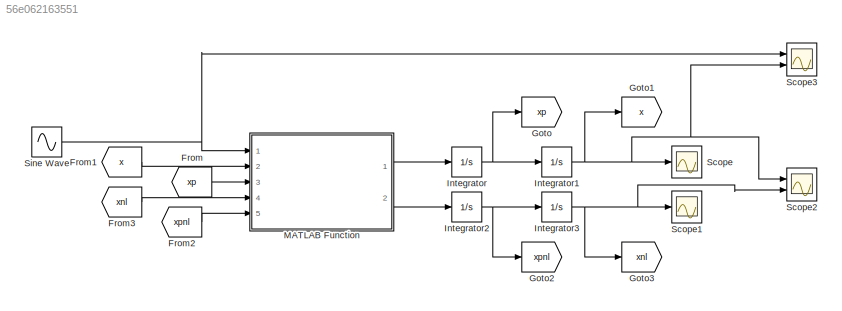
MODEL slx_56e062163551
KIND model
CONFIG AbsTol = auto
CONFIG EnableMultiTasking = off
CONFIG FixedStep = auto
CONFIG MaxStep = 1e-2
CONFIG MinStep = auto
CONFIG RelTol = 1e-3
CONFIG SampleTimeConstraint = Unconstrained
CONFIG SolverName = VariableStepAuto
CONFIG StartTime = 0.0
CONFIG StopTime = 1000
BLOCK [From] From
  GotoTag = xp
BLOCK [From] From1
  GotoTag = x
BLOCK [From] From2
  GotoTag = xpnl
BLOCK [From] From3
  GotoTag = xnl
BLOCK [Goto] Goto
  GotoTag = xp
BLOCK [Goto] Goto1
  GotoTag = x
BLOCK [Goto] Goto2
  GotoTag = xpnl
BLOCK [Goto] Goto3
  GotoTag = xnl
BLOCK [Integrator] Integrator
  Ports = [1, 1]
BLOCK [Integrator] Integrator1
  Ports = [1, 1]
BLOCK [Integrator] Integrator2
  Ports = [1, 1]
BLOCK [Integrator] Integrator3
  Ports = [1, 1]
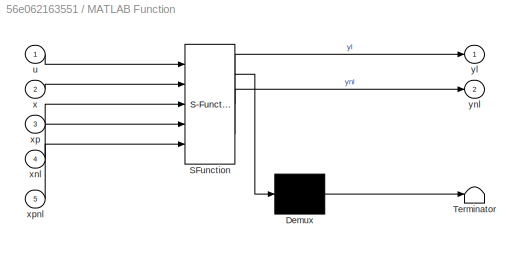
BLOCK [SubSystem] MATLAB Function
  ErrorFcn = Stateflow.Translate.translate
  PermitHierarchicalResolution = ExplicitOnly
  Ports = [5, 2]
  RequestExecContextInheritance = off
  SFBlockType = MATLAB Function
  TreatAsAtomicUnit = on
BLOCK [Demux] MATLAB Function/ Demux 
  Outputs = 1
  Ports = [1, 1]
BLOCK [S-Function] MATLAB Function/ SFunction 
  EnableBusSupport = on
  FunctionName = sf_sfun
  PortCounts = [5 3]
  Ports = [5, 3]
  SFcnIsStateOwnerBlock = off
  SFunctionDeploymentMode = off
  Tag = Stateflow S-Function 2
BLOCK [Terminator] MATLAB Function/ Terminator 
BLOCK [Inport] MATLAB Function/u
BLOCK [Inport] MATLAB Function/x
  Port = 2
BLOCK [Inport] MATLAB Function/xnl
  Port = 4
BLOCK [Inport] MATLAB Function/xp
  Port = 3
BLOCK [Inport] MATLAB Function/xpnl
  Port = 5
BLOCK [Outport] MATLAB Function/yl
  VectorParamsAs1DForOutWhenUnconnected = off
BLOCK [Outport] MATLAB Function/ynl
  Port = 2
  VectorParamsAs1DForOutWhenUnconnected = off
BLOCK [Scope] Scope
  Floating = off
  NumInputPorts = 1
  Ports = [1]
  ScopeSpecificationString = Simulink.scopes.TimeScopeBlockCfg('CurrentConfiguration', extmgr.ConfigurationSet(extmgr.Configuration('Core','General UI',true),extmgr.Configuration('Core','Source UI',true),extmgr.Configuration('Sources','WiredSimulink',true),extmgr.Configuration('Visuals','Time Domain',true,'SerializedDisplays',{struct('MinYLimReal','-1.02361','MaxYLimReal','1.04599','YLabelReal','','MinYLimMag','0.00000','MaxY...<+1408ch>
BLOCK [Scope] Scope1
  Floating = off
  NumInputPorts = 1
  Ports = [1]
  ScopeSpecificationString = Simulink.scopes.TimeScopeBlockCfg('CurrentConfiguration', extmgr.ConfigurationSet(extmgr.Configuration('Core','General UI',true),extmgr.Configuration('Core','Source UI',true),extmgr.Configuration('Sources','WiredSimulink',true,'DataLoggingVariableName','ScopeData1'),extmgr.Configuration('Visuals','Time Domain',true,'SerializedDisplays',{struct('MinYLimReal','-0.14624','MaxYLimReal','0.14607','YLab...<+1445ch>
BLOCK [Scope] Scope2
  Floating = off
  NumInputPorts = 2
  Ports = [2]
  ScopeSpecificationString = Simulink.scopes.TimeScopeBlockCfg('CurrentConfiguration', extmgr.ConfigurationSet(extmgr.Configuration('Core','General UI',true),extmgr.Configuration('Core','Source UI',true),extmgr.Configuration('Sources','WiredSimulink',true,'DataLoggingVariableName','ScopeData2'),extmgr.Configuration('Visuals','Time Domain',true,'SerializedDisplays',{struct('MinYLimReal','-1.42657','MaxYLimReal','1.38646','YLab...<+1442ch>
BLOCK [Scope] Scope3
  Floating = off
  NumInputPorts = 2
  Ports = [2]
  ScopeSpecificationString = Simulink.scopes.TimeScopeBlockCfg('CurrentConfiguration', extmgr.ConfigurationSet(extmgr.Configuration('Core','General UI',true),extmgr.Configuration('Core','Source UI',true),extmgr.Configuration('Sources','WiredSimulink',true,'DataLoggingVariableName','ScopeData1'),extmgr.Configuration('Visuals','Time Domain',true,'SerializedDisplays',{struct('MinYLimReal','-5.00000','MaxYLimReal','5.00000','YLab...<+1502ch>
BLOCK [Sin] Sine Wave
  Amplitude = 4
  Frequency = 20
  Ports = [0, 1]
  SampleTime = 0
LINE From1:1 -> MATLAB Function:2
LINE From2:1 -> MATLAB Function:5
LINE From3:1 -> MATLAB Function:4
LINE From:1 -> MATLAB Function:3
NET Integrator1:1 -> Goto1:1, Scope2:1, Scope3:2, Scope:1
NET Integrator2:1 -> Goto2:1, Integrator3:1
NET Integrator3:1 -> Goto3:1, Scope1:1, Scope2:2
NET Integrator:1 -> Goto:1, Integrator1:1
LINE MATLAB Function:1 -> Integrator:1
LINE MATLAB Function:2 -> Integrator2:1
NET Sine Wave:1 -> MATLAB Function:1, Scope3:1
note: NET lines group one-source signal fan-out (src -> all destinations, sorted); 1:1 wires keep LINE
CHART MATLAB Function states=1 transitions=1
  STATE_LABEL 'eML_blk_kernel()'
  STATE_LABEL 'SCRIPT:\nfunction [yl,ynl]= fcn(u,x,xp,xnl,xpnl)\n%parametros\nm=10;\nb=2;\nk=5;\nkp=100*k\nyl=(u-k*x-b*xp)/m;\nynl=(u-k*(xnl+kp*xnl^3)-b*xpnl)/m;'
CHART  states=0 transitions=0
